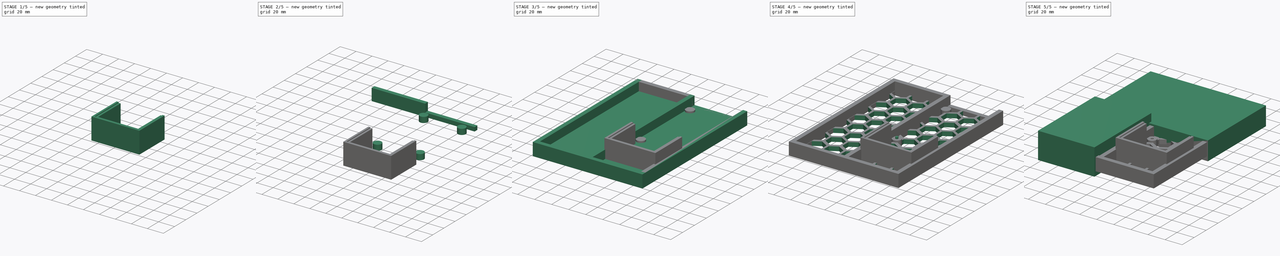
[diagram: build sequence overview — one tinted view per stage of 5, left to right]
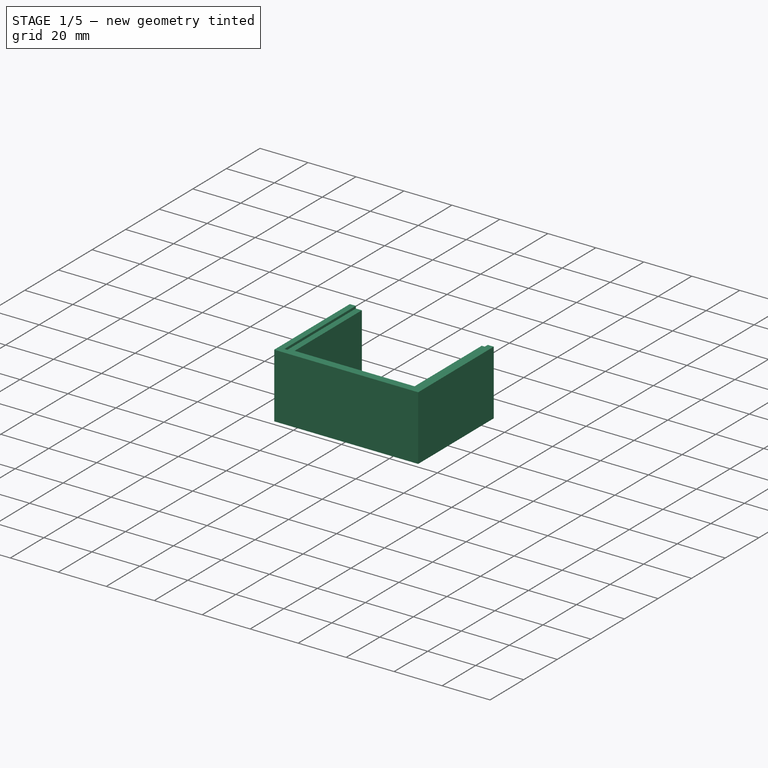
[diagram: stage 1 of 5 — iso view after this stage's code; geometry added in this stage tinted green]
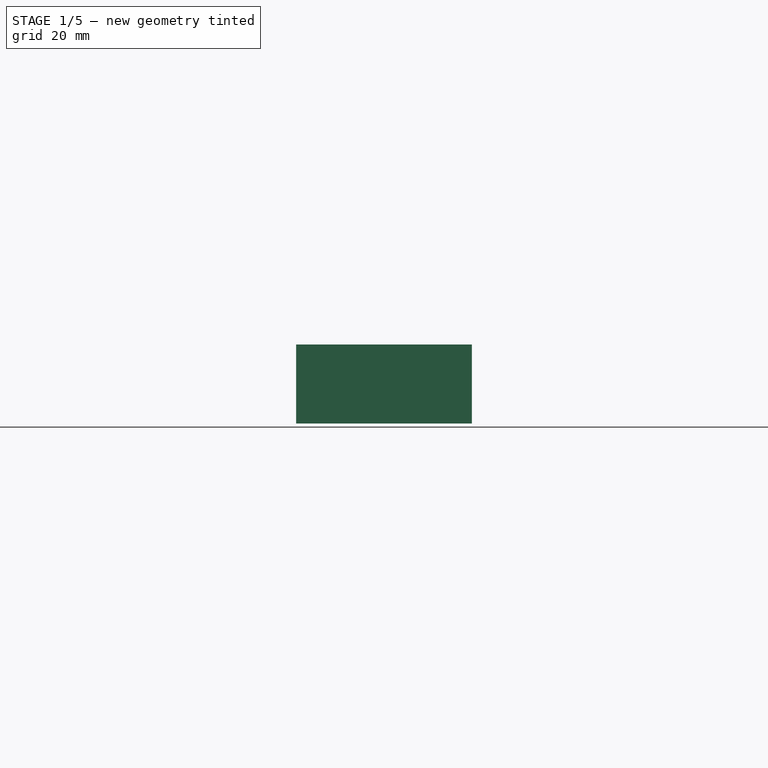
[diagram: stage 1 of 5 — front view after this stage's code; geometry added in this stage tinted green]
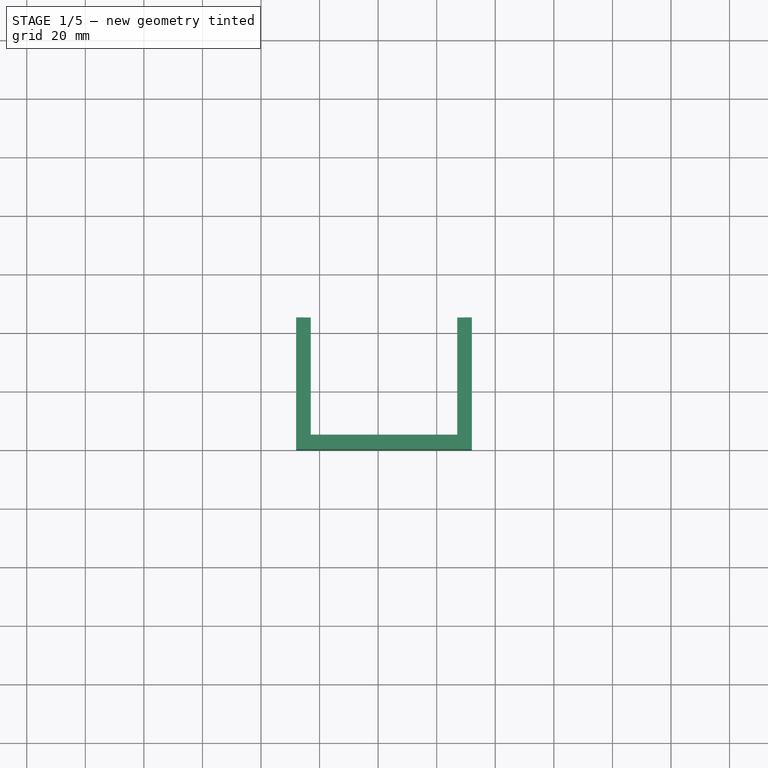
[diagram: stage 1 of 5 — top view after this stage's code; geometry added in this stage tinted green]
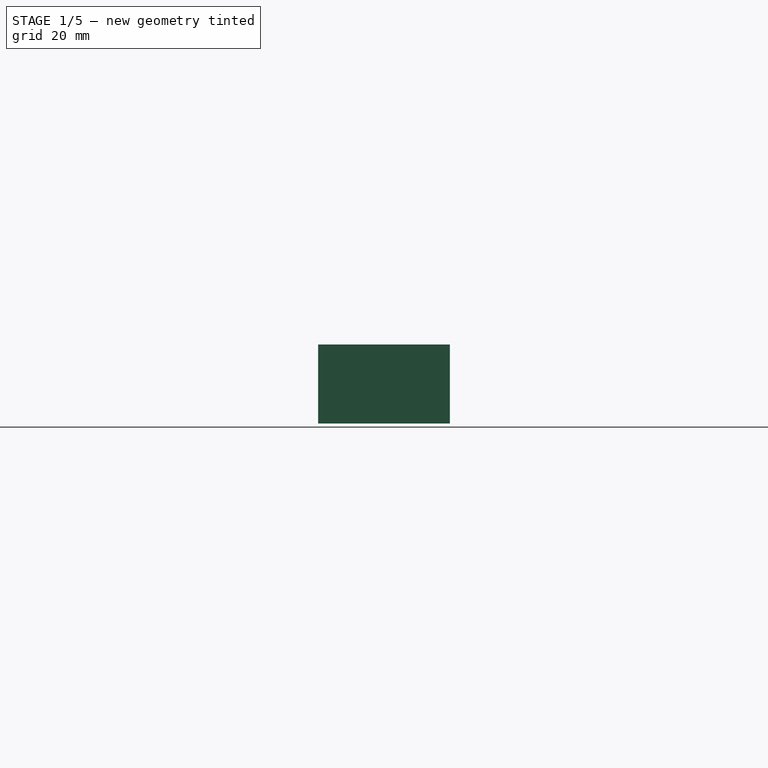
[diagram: stage 1 of 5 — right view after this stage's code; geometry added in this stage tinted green]
FCSTD DOCUMENT  (FreeCAD 1.0R39109 (Git))
Label: RetroShield Carrier
License: All rights reserved
LicenseURL: http://en.wikipedia.org/wiki/All_rights_reserved
objects: Part::Box×13, Part::Cylinder×8, Part::MultiFuse×4, Part::Cut×3, Sketcher::SketchObject×1, Part::FeaturePython×1, Part::Extrusion×1
note: 31 computed .brp shape members not serialized (recipe doc carries the construction recipe); baked Part::Feature solids carry a one-line shape summary decoded from their .brp

FEATURE [Part::Box] Box010  label="Cube003"
  AttacherType = Attacher::AttachEngine3D
  Height = 27
  Length = 5
  Placement = pos=(72,0,5) rot=(0,0,1;0rad)
  Width = 45
FEATURE [Part::Box] Box011  label="Cube004"
  AttacherType = Attacher::AttachEngine3D
  Height = 27
  Length = 5
  Placement = pos=(127,0,5) rot=(0,0,1;0rad)
  Width = 45
FEATURE [Part::Box] Box012  label="Cube005"
  AttacherType = Attacher::AttachEngine3D
  Height = 27
  Length = 60
  Placement = pos=(72,0,5) rot=(0,0,1;0rad)
  Width = 5
FEATURE [Part::MultiFuse] Fusion
  Shapes = -> [Box010,Box011,Box012]
FEATURE [Part::Box] Box013  label="Cube006"
  AttacherType = Attacher::AttachEngine3D
  Height = 10
  Length = 55
  Placement = pos=(74.5,2.5,31) rot=(0,0,1;0rad)
  Width = 47
FEATURE [Part::Cut] Cut001
  Base = -> Fusion
  Tool = -> Box013
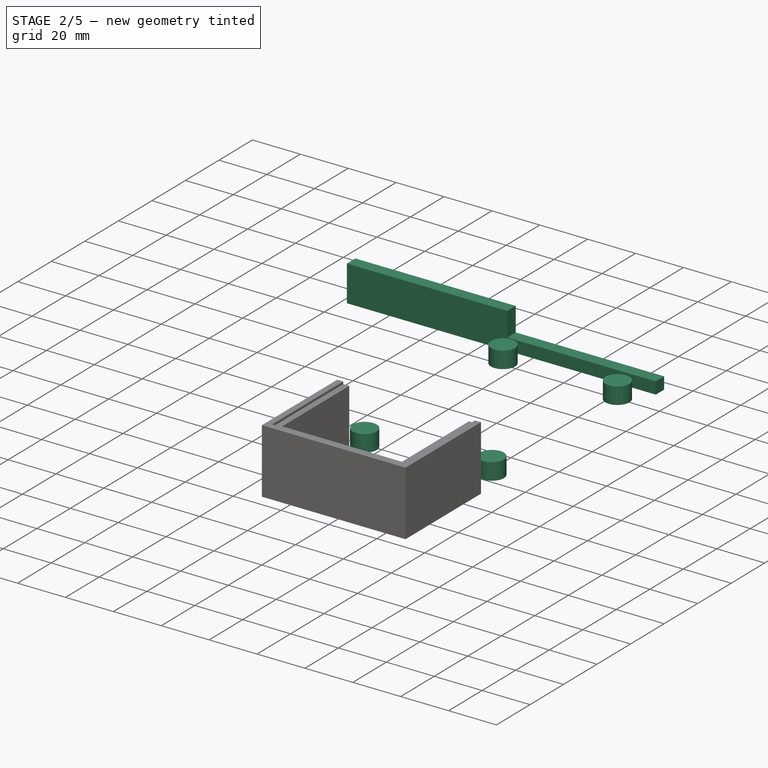
[diagram: stage 2 of 5 — iso view after this stage's code; geometry added in this stage tinted green]
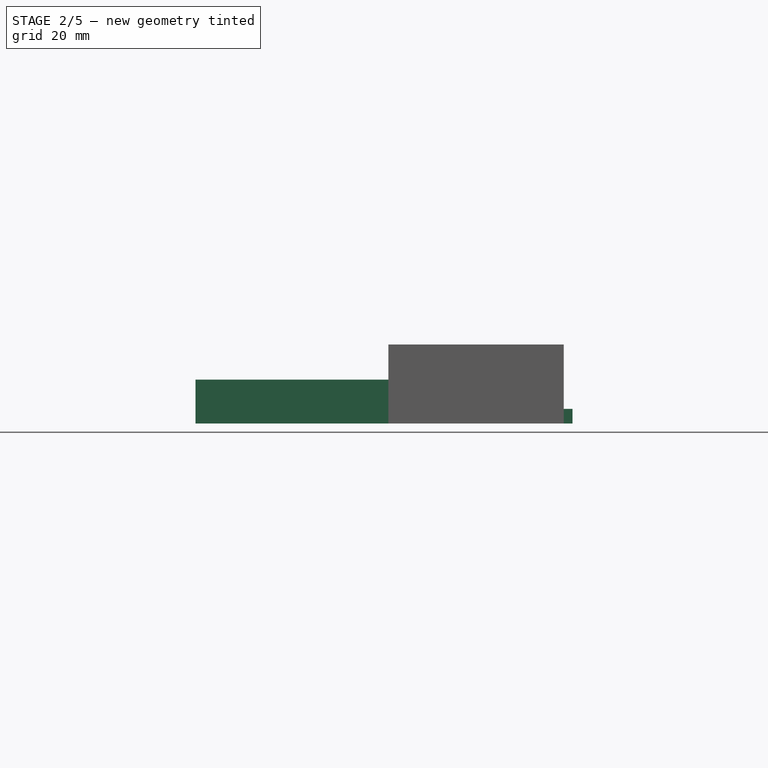
[diagram: stage 2 of 5 — front view after this stage's code; geometry added in this stage tinted green]
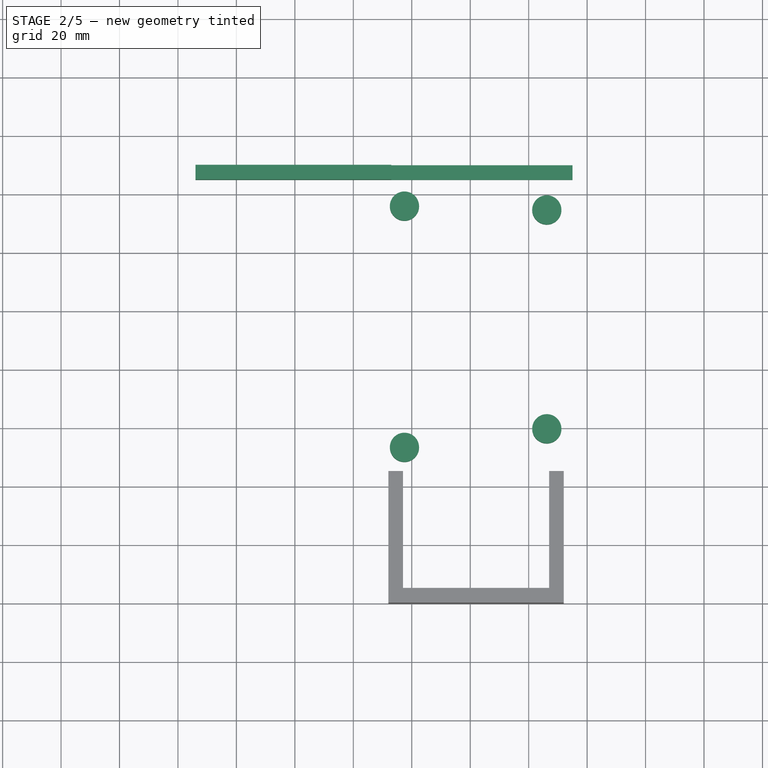
[diagram: stage 2 of 5 — top view after this stage's code; geometry added in this stage tinted green]
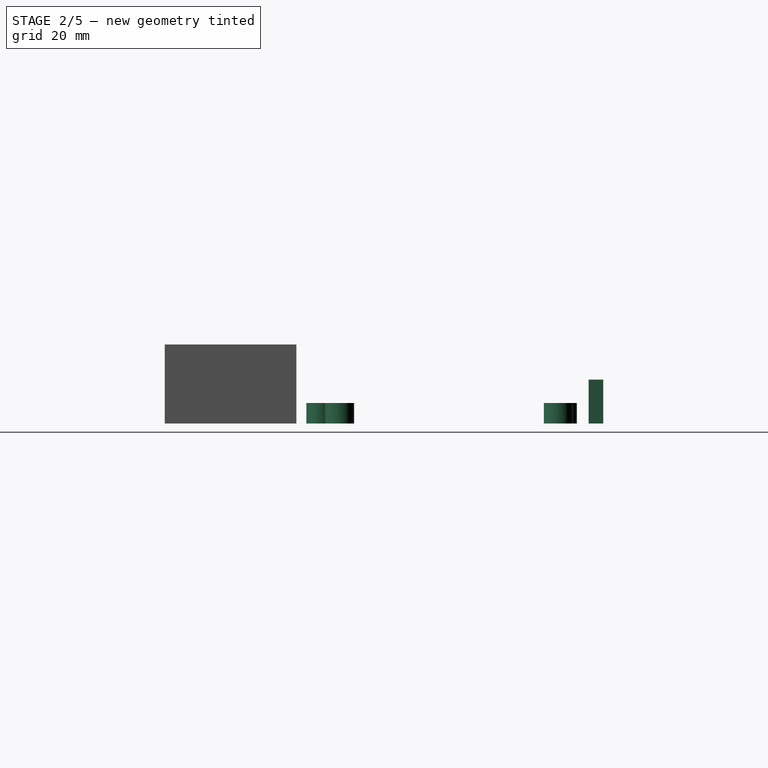
[diagram: stage 2 of 5 — right view after this stage's code; geometry added in this stage tinted green]
FEATURE [Part::Box] Box005  label="Edge02a"
  AttacherType = Attacher::AttachEngine3D
  Height = 15
  Length = 67
  Placement = pos=(6,145,5) rot=(0,0,1;0rad)
  Width = 5
FEATURE [Part::Box] Box006  label="Edge02b"
  AttacherType = Attacher::AttachEngine3D
  Height = 5
  Length = 67
  Placement = pos=(68,145,5) rot=(0,0,1;0rad)
  Width = 5
FEATURE [Part::Cylinder] Cylinder  label="Pad01"
  Angle = 360
  AttacherType = Attacher::AttachEngine3D
  FirstAngle = 0
  Height = 7
  Placement = pos=(77.5,136,5) rot=(0,0,1;0rad)
  Radius = 5
  SecondAngle = 0
FEATURE [Part::Cylinder] Cylinder001  label="Pad02"
  Angle = 360
  AttacherType = Attacher::AttachEngine3D
  FirstAngle = 0
  Height = 7
  Placement = pos=(126.2,134.7,5) rot=(0,0,1;0rad)
  Radius = 5
  SecondAngle = 0
FEATURE [Part::Cylinder] Cylinder002  label="Pad03"
  Angle = 360
  AttacherType = Attacher::AttachEngine3D
  FirstAngle = 0
  Height = 7
  Placement = pos=(126.2,59.8,5) rot=(0,0,1;0rad)
  Radius = 5
  SecondAngle = 0
FEATURE [Part::Cylinder] Cylinder003  label="Pad04"
  Angle = 360
  AttacherType = Attacher::AttachEngine3D
  FirstAngle = 0
  Height = 7
  Placement = pos=(77.5,53.45,5) rot=(0,0,1;0rad)
  Radius = 5
  SecondAngle = 0
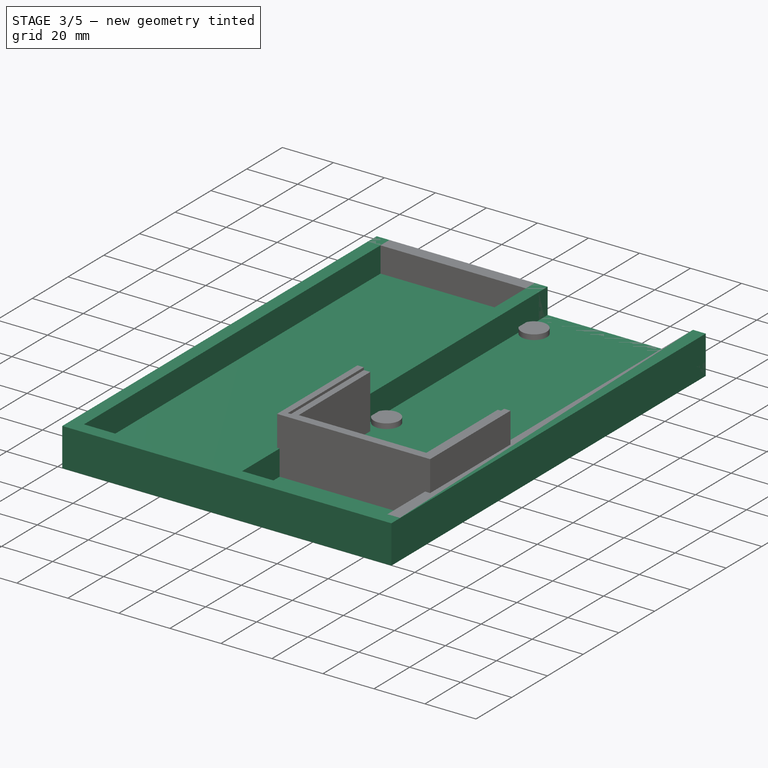
[diagram: stage 3 of 5 — iso view after this stage's code; geometry added in this stage tinted green]
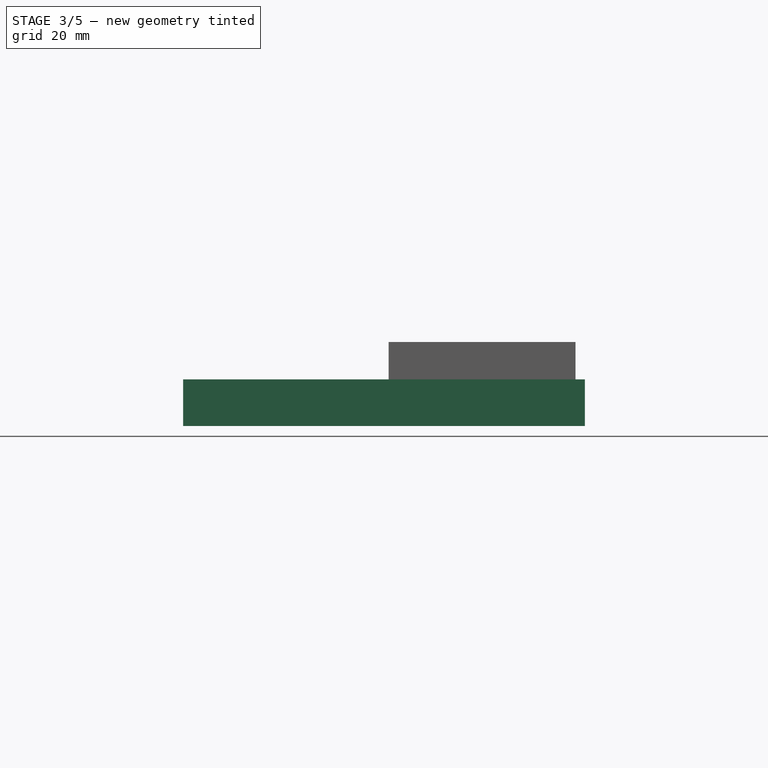
[diagram: stage 3 of 5 — front view after this stage's code; geometry added in this stage tinted green]
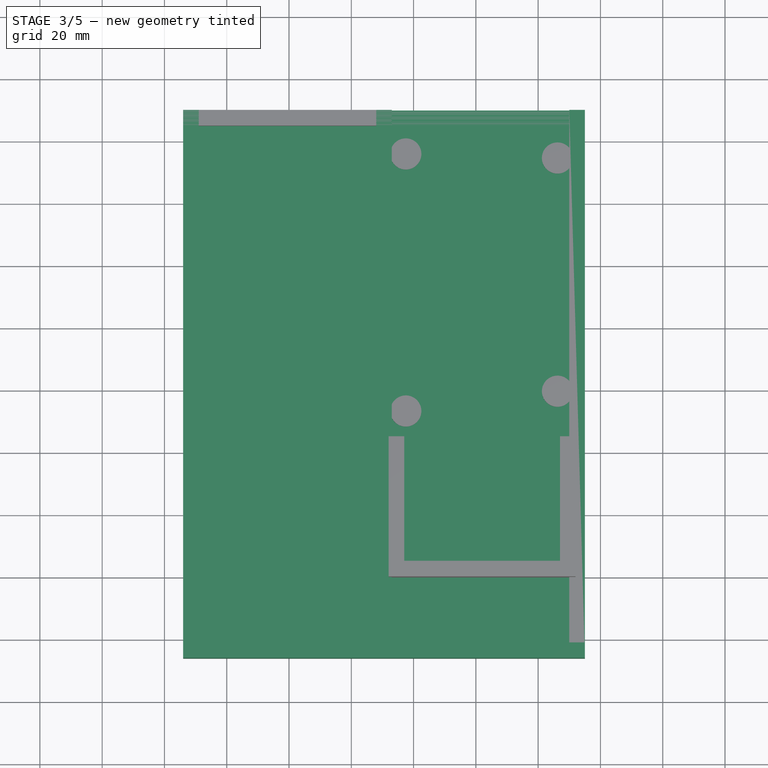
[diagram: stage 3 of 5 — top view after this stage's code; geometry added in this stage tinted green]
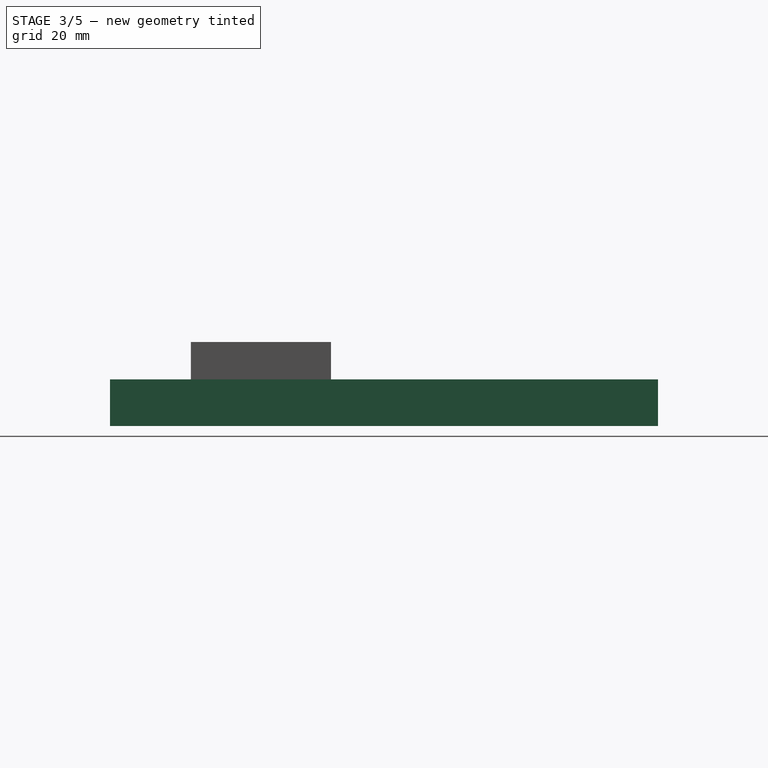
[diagram: stage 3 of 5 — right view after this stage's code; geometry added in this stage tinted green]
FEATURE [Part::Box] Box  label="Cube"
  AttacherType = Attacher::AttachEngine3D
  Height = 5
  Length = 122
  Placement = pos=(9,-24,5) rot=(0,0,1;0rad)
  Width = 174
FEATURE [Part::Box] Box001  label="Rail01"
  AttacherType = Attacher::AttachEngine3D
  Height = 15
  Length = 5
  Placement = pos=(6,-26,5) rot=(0,0,1;0rad)
  Width = 176
FEATURE [Part::Box] Box002  label="Rail02"
  AttacherType = Attacher::AttachEngine3D
  Height = 15
  Length = 5
  Placement = pos=(68,-26,5) rot=(0,0,1;0rad)
  Width = 176
FEATURE [Part::Box] Box003  label="Rail03"
  AttacherType = Attacher::AttachEngine3D
  Height = 15
  Length = 5
  Placement = pos=(130,-26,5) rot=(0,0,1;0rad)
  Width = 176
FEATURE [Part::Box] Box004  label="Edge01"
  AttacherType = Attacher::AttachEngine3D
  Height = 15
  Length = 129
  Placement = pos=(6,-26,5) rot=(0,0,1;0rad)
  Width = 5
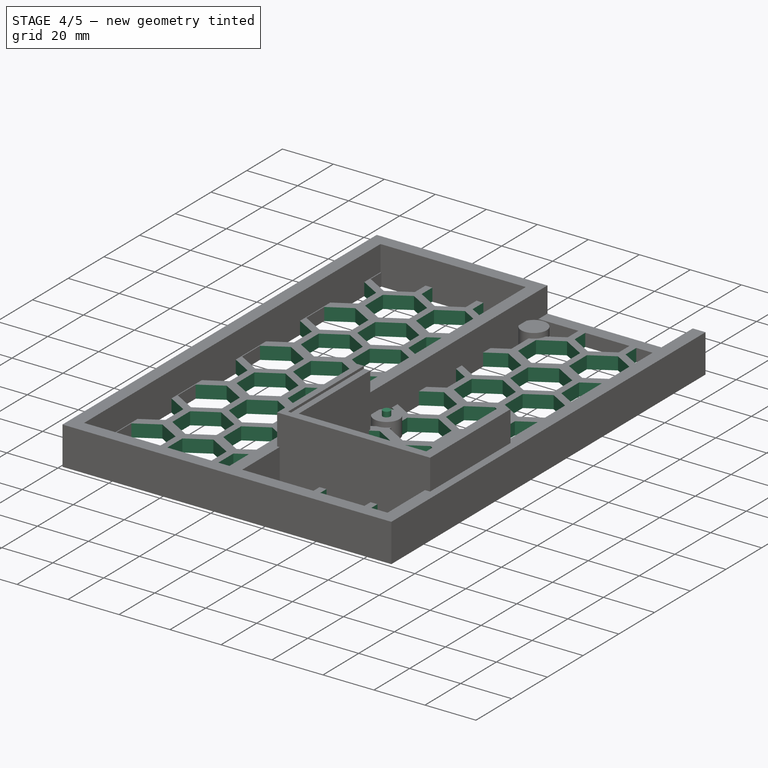
[diagram: stage 4 of 5 — iso view after this stage's code; geometry added in this stage tinted green]
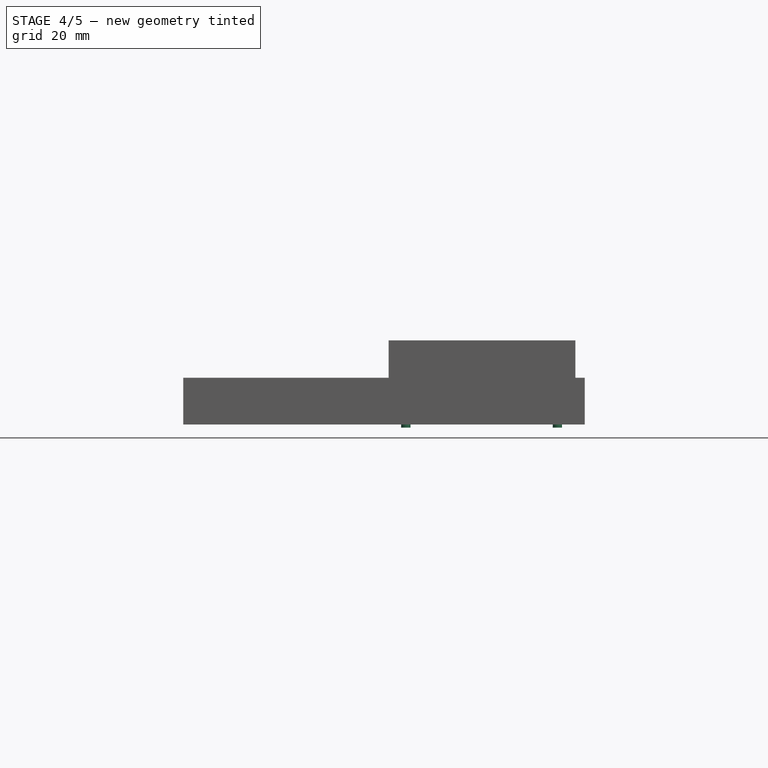
[diagram: stage 4 of 5 — front view after this stage's code; geometry added in this stage tinted green]
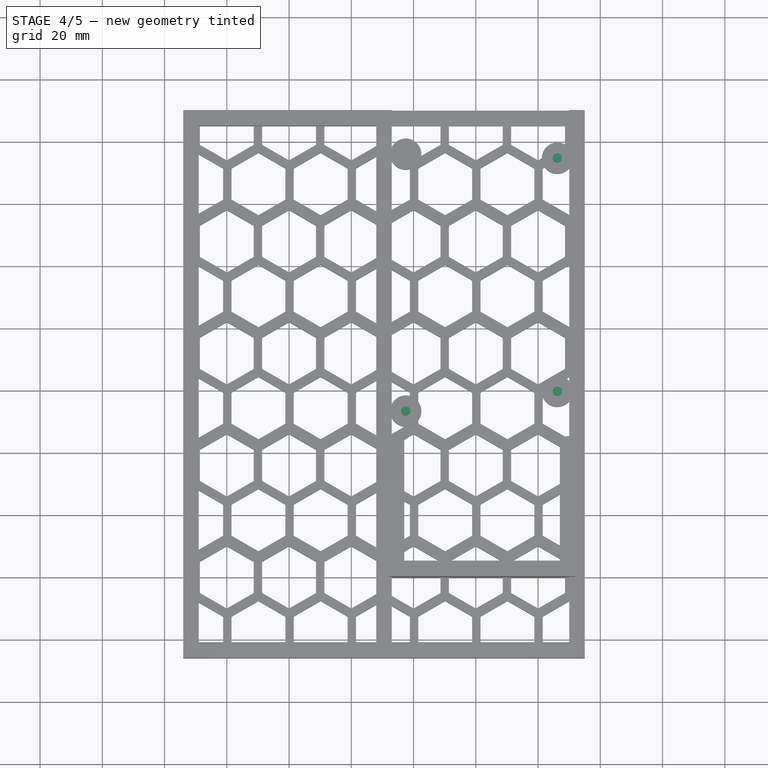
[diagram: stage 4 of 5 — top view after this stage's code; geometry added in this stage tinted green]
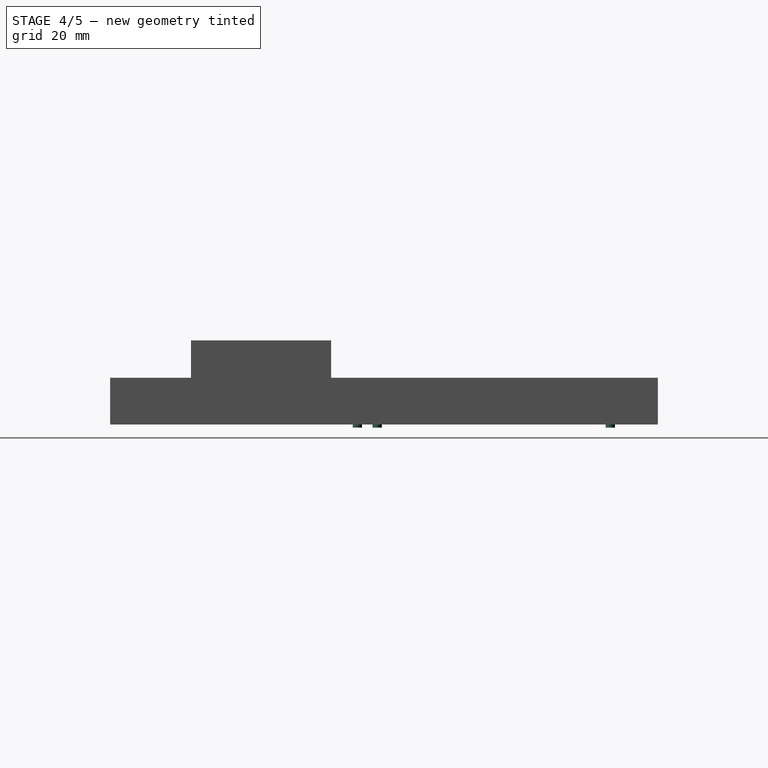
[diagram: stage 4 of 5 — right view after this stage's code; geometry added in this stage tinted green]
FEATURE [Sketcher::SketchObject] Sketch
  ArcFitTolerance = 0
  FullyConstrained = true
  MakeInternals = false
  sketch-geometry (17):
    g0: LineSegment StartX=0 StartY=10 StartZ=0 EndX=-8.66025 EndY=5 EndZ=0
    g1: LineSegment StartX=-8.66025 StartY=5 StartZ=0 EndX=-8.66025 EndY=-5 EndZ=0
    g2: LineSegment StartX=-8.66025 StartY=-5 StartZ=0 EndX=0 EndY=-10 EndZ=0
    g3: LineSegment StartX=0 StartY=-10 StartZ=0 EndX=8.66025 EndY=-5 EndZ=0
    g4: LineSegment StartX=8.66025 StartY=-5 StartZ=0 EndX=8.66025 EndY=5 EndZ=0
    g5: LineSegment StartX=8.66025 StartY=5 StartZ=0 EndX=0 EndY=10 EndZ=0
    g6: Circle [constr] CenterX=0 CenterY=0 CenterZ=0 NormalX=0 NormalY=0 NormalZ=1 AngleXU=0 Radius=10
    g7: LineSegment StartX=18.8205 StartY=-22.5981 StartZ=0 EndX=18.8205 EndY=-12.5981 EndZ=0
    g8: LineSegment StartX=18.8205 StartY=-12.5981 StartZ=0 EndX=10.1603 EndY=-7.59808 EndZ=0
    g9: LineSegment StartX=10.1603 StartY=-7.59808 StartZ=0 EndX=1.5 EndY=-12.5981 EndZ=0
    g10: LineSegment StartX=1.5 StartY=-12.5981 StartZ=0 EndX=1.5 EndY=-22.5981 EndZ=0
    g11: LineSegment StartX=1.5 StartY=-22.5981 StartZ=0 EndX=10.1603 EndY=-27.5981 EndZ=0
    g12: LineSegment StartX=10.1603 StartY=-27.5981 StartZ=0 EndX=18.8205 EndY=-22.5981 EndZ=0
    g13: Circle [constr] CenterX=10.1603 CenterY=-17.5981 CenterZ=0 NormalX=0 NormalY=0 NormalZ=1 AngleXU=0 Radius=10
    g14: LineSegment [constr] StartX=8.66025 StartY=-5 StartZ=0 EndX=10.1603 EndY=-7.59808 EndZ=0
    g15: LineSegment [constr] StartX=10.1603 StartY=-7.59808 StartZ=0 EndX=11.6603 EndY=-5 EndZ=0
    g16: LineSegment [constr] StartX=11.6603 StartY=-5 StartZ=0 EndX=8.66025 EndY=-5 EndZ=0
  constraints (40):
    c: Coincident(g0,g1)
    c: Coincident(g1,g2)
    c: Coincident(g2,g3)
    c: Coincident(g3,g4)
    c: Coincident(g4,g5)
    c: Coincident(g5,g0)
    c: Equal(g0, g1-g5) x5
    c: PointOnObject(g0,g6)
    c: PointOnObject(g1,g6)
    c: PointOnObject(g2,g6)
    c: PointOnObject(g3,g6)
    c: PointOnObject(g4,g6)
    c: PointOnObject(g5,g6)
    c: Coincident(g6,g-1)
    c: Diameter(g6) = 20
    c: PointOnObject(g2,g-2)
    c: Coincident(g7,g8)
    c: Coincident(g8,g9)
    c: Coincident(g9,g10)
    c: Coincident(g10,g11)
    c: Coincident(g11,g12)
    c: Coincident(g12,g7)
    c: Equal(g7, g8-g12) x5
    c: PointOnObject(g7,g13)
    c: PointOnObject(g8,g13)
    c: PointOnObject(g9,g13)
    c: PointOnObject(g10,g13)
    c: PointOnObject(g11,g13)
    c: PointOnObject(g12,g13)
    c: Vertical(g10)
    c: Equal(g13,g6)
    c: Coincident(g3,g14)
    c: Coincident(g14,g8)
    c: Coincident(g14,g15)
    c: Coincident(g15,g16)
    c: Coincident(g16,g14)
    c: Equal(g14,g16)
    c: Equal(g16,g15)
    c: Horizontal(g16)
    c: DistanceX(g16,g16) = 3
FEATURE [Part::FeaturePython] Array  # Draft array (typed FeaturePython)
  AlwaysSyncPlacement = false
  Angle = 360
  ArrayType = 0
  Axis = (0,0,1)
  Base = -> Sketch
  Center = (0,0,0)
  Count = 50
  ExpandArray = false
  Fuse = false
  IntervalAxis = (0,0,0)
  IntervalX = (20,0,0)
  IntervalY = (0,36,0)
  IntervalZ = (0,0,100)
  NumberCircles = 3
  NumberPolar = 5
  NumberX = 10
  NumberY = 5
  NumberZ = 1
  PlacementList = 50 placements: [(0,0,0),(0,36,0),(0,72,0),(0,108,0),(0,144,0),(20,0,0),(20,36,0),(20,72,0),(20,108,0),(20,144,0),(40,0,0),(40,36,0),(40,72,0),(40,108,0),(40,144,0),(60,0,0),(60,36,0),(60,72,0),(60,108,0),(60,144,0),(80,0,0),(80,36,0),(80,72,0),(80,108,0),(80,144,0),(100,0,0),(100,36,0),(100,72,0),(100,108,0),(100,144,0),(120,0,0),(120,36,0),(120,72,0),(120,108,0),(120,144,0),(140,0,0),(140,36,0),(140,72,0),+12 more]
  RadialDistance = 50
  ScaleList = (50) [(1,1,1),(1,1,1),(1,1,1),(1,1,1),(1,1,1),(1,1,1),(1,1,1),(1,1,1),(1,1,1),(1,1,1),(1,1,1),(1,1,1),(1,1,1),(1,1,1),(1,1,1),(1,1,1),(1,1,1),(1,1,1),+32 more]
  Symmetry = 1
  TangentialDistance = 25
FEATURE [Part::Extrusion] Extrude
  Base = -> Array
  Dir = (0,0,1)
  DirMode = 2
  FaceMakerClass = Part::FaceMakerBullseye
  FaceMakerMode = 3
  LengthFwd = 15
  LengthRev = 0
  Solid = true
  Symmetric = false
FEATURE [Part::Cut] Cut  label="Mesh"
  Base = -> Box
  Tool = -> Extrude
FEATURE [Part::Cylinder] Cylinder005  label="Hole02"
  Angle = 360
  AttacherType = Attacher::AttachEngine3D
  FirstAngle = 0
  Height = 10
  Placement = pos=(126.2,134.7,4) rot=(0,0,1;0rad)
  Radius = 1.5
  SecondAngle = 0
FEATURE [Part::Cylinder] Cylinder006  label="Hole03"
  Angle = 360
  AttacherType = Attacher::AttachEngine3D
  FirstAngle = 0
  Height = 10
  Placement = pos=(126.2,59.8,4) rot=(0,0,1;0rad)
  Radius = 1.5
  SecondAngle = 0
FEATURE [Part::Cylinder] Cylinder007  label="Hole04"
  Angle = 360
  AttacherType = Attacher::AttachEngine3D
  FirstAngle = 0
  Height = 10
  Placement = pos=(77.5,53.45,4) rot=(0,0,1;0rad)
  Radius = 1.5
  SecondAngle = 0
FEATURE [Part::MultiFuse] Fusion007  label="Body"
  Shapes = -> [Cut,Box001,Box002,Box003,Box004,Box005,Box006,Cylinder,Cylinder001,Cylinder003,Cylinder002,Cut001]
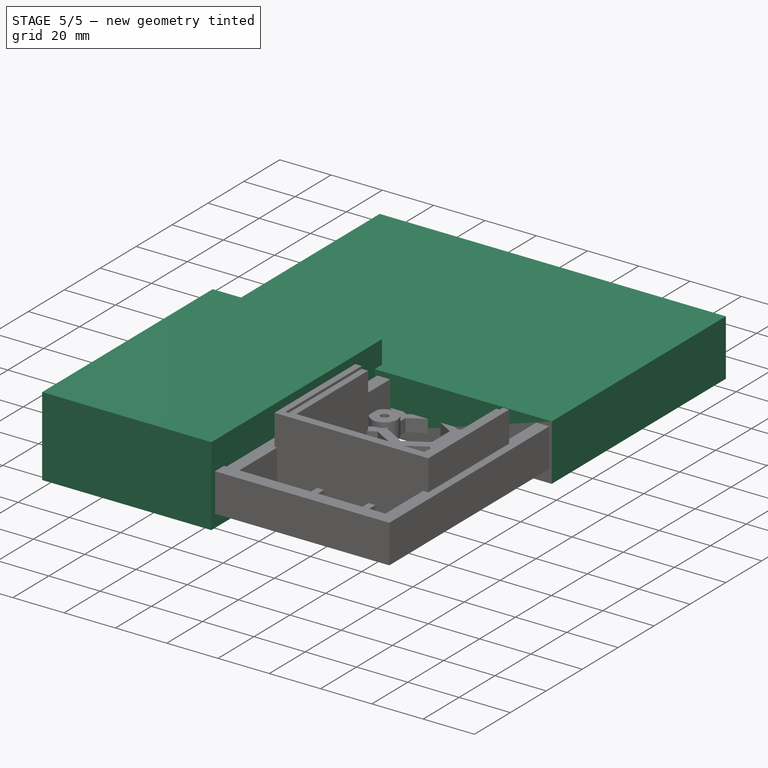
[diagram: stage 5 of 5 — iso view after this stage's code; geometry added in this stage tinted green]
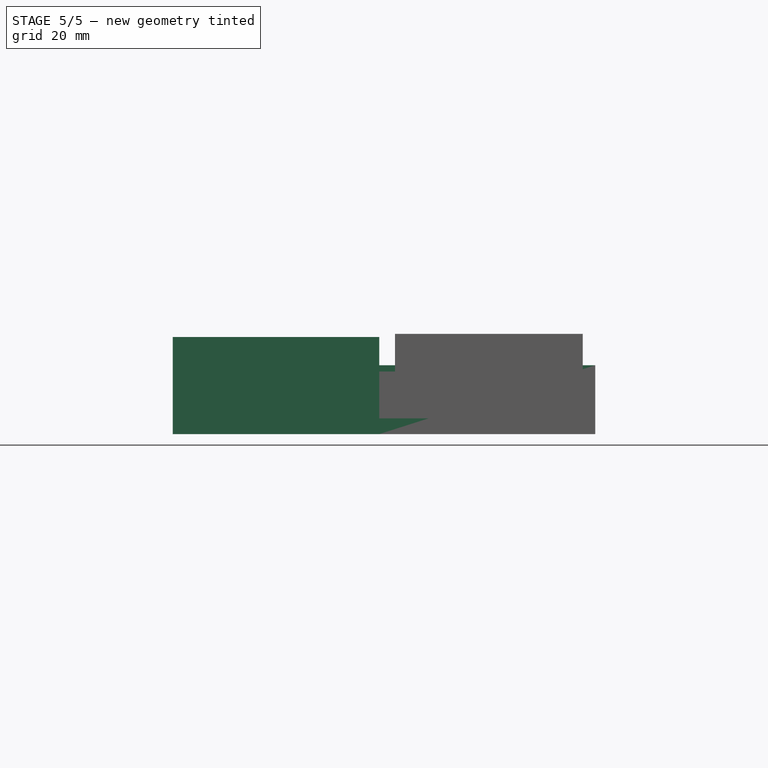
[diagram: stage 5 of 5 — front view after this stage's code; geometry added in this stage tinted green]
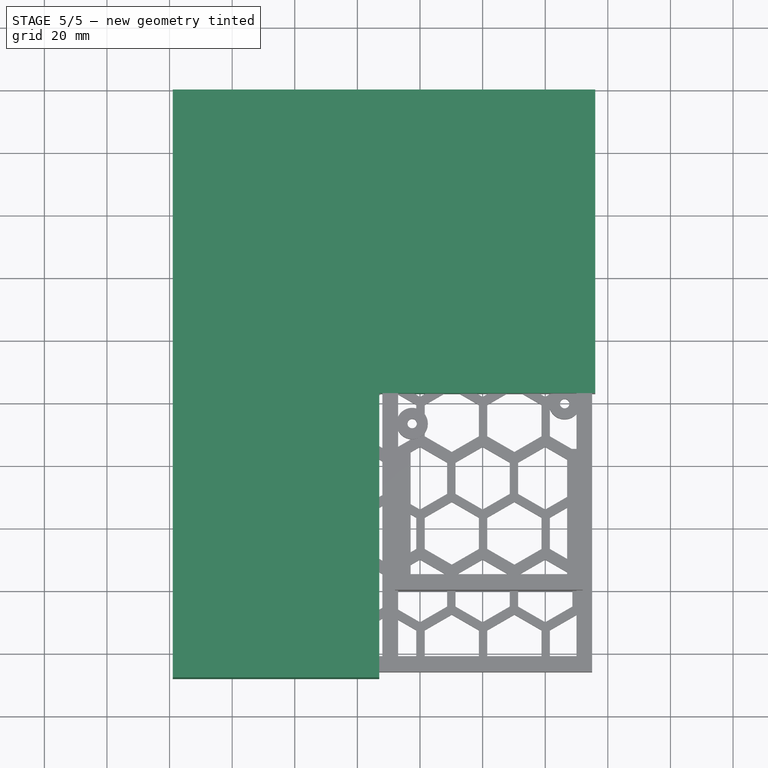
[diagram: stage 5 of 5 — top view after this stage's code; geometry added in this stage tinted green]
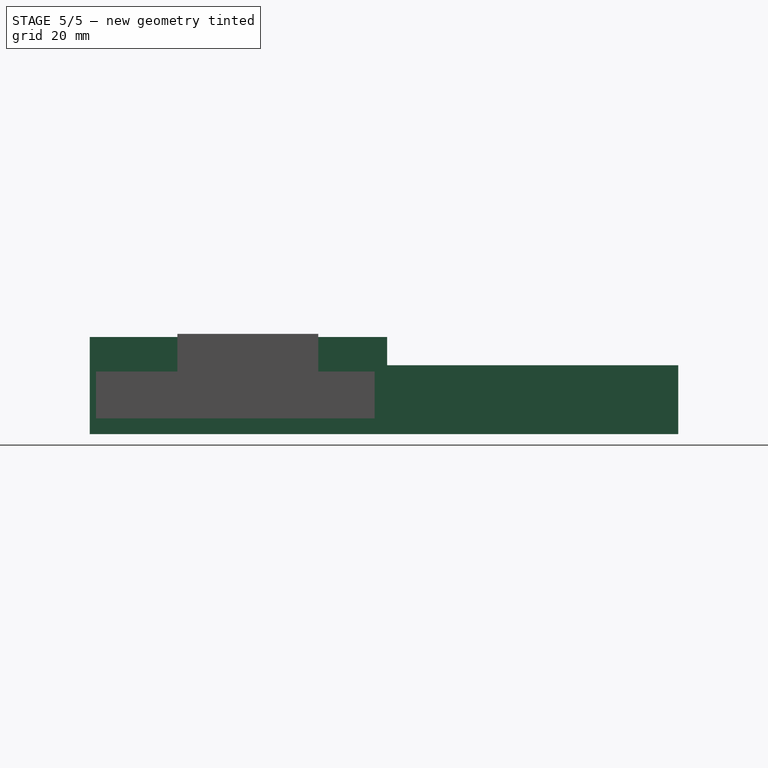
[diagram: stage 5 of 5 — right view after this stage's code; geometry added in this stage tinted green]
FEATURE [Part::Box] Box008  label="Cube001"
  AttacherType = Attacher::AttachEngine3D
  Height = 22
  Length = 135
  Placement = pos=(1,63,0) rot=(0,0,1;0rad)
  Width = 97
FEATURE [Part::Box] Box009  label="Cube002"
  AttacherType = Attacher::AttachEngine3D
  Height = 31
  Length = 66
  Placement = pos=(1,-28,0) rot=(0,0,1;0rad)
  Width = 95
FEATURE [Part::Cylinder] Cylinder004  label="Hole01"
  Angle = 360
  AttacherType = Attacher::AttachEngine3D
  FirstAngle = 0
  Height = 10
  Placement = pos=(77.5,136,4) rot=(0,0,1;0rad)
  Radius = 1.5
  SecondAngle = 0
FEATURE [Part::MultiFuse] Fusion002  label="Holes"
  Shapes = -> [Cylinder004,Cylinder005,Cylinder006,Cylinder007]
FEATURE [Part::MultiFuse] Fusion006
  Shapes = -> [Box008,Box009]
FEATURE [Part::Cut] Cut002  label="Carrier"
  Base = -> Fusion007
  Tool = -> Fusion002
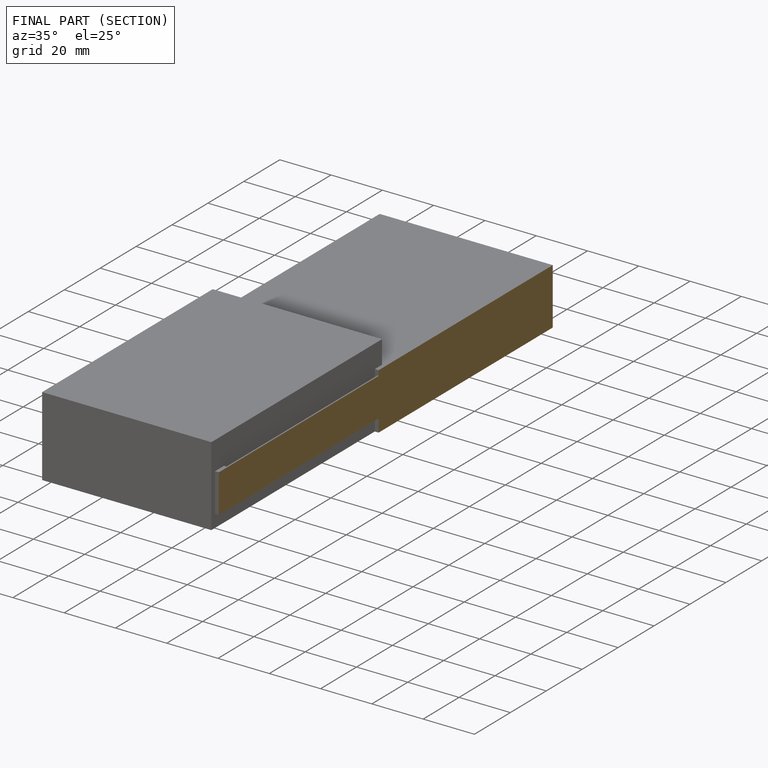
[diagram: finished part — half-section view (interior)]
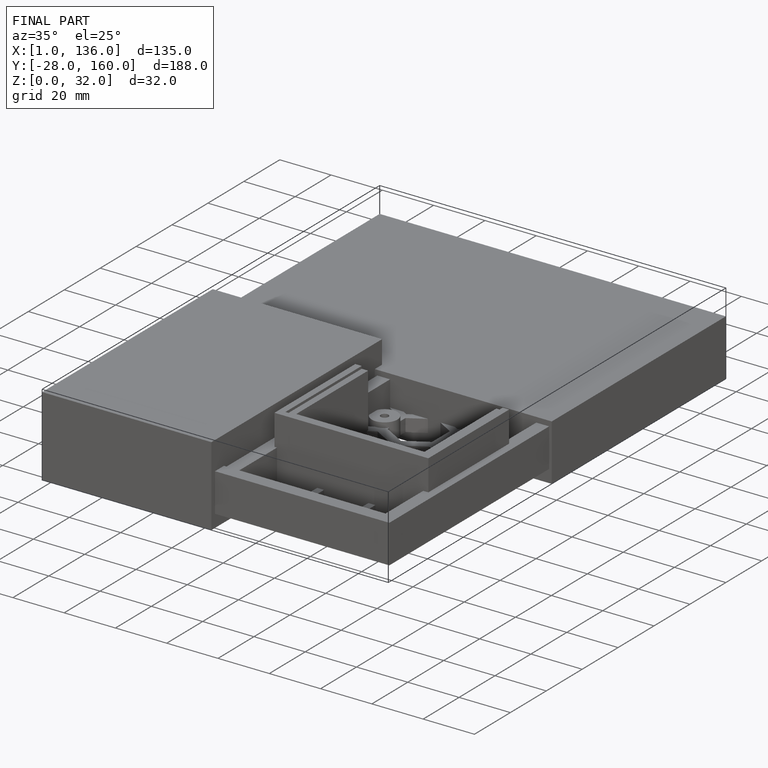
[diagram: finished part — iso view with bounding-box wireframe]
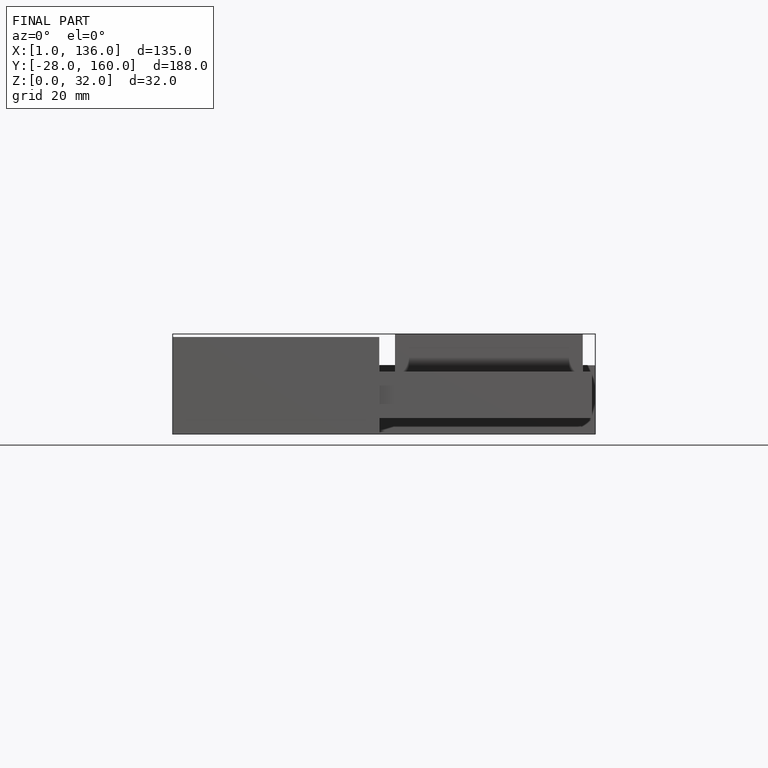
[diagram: finished part — front view with bounding-box wireframe]
